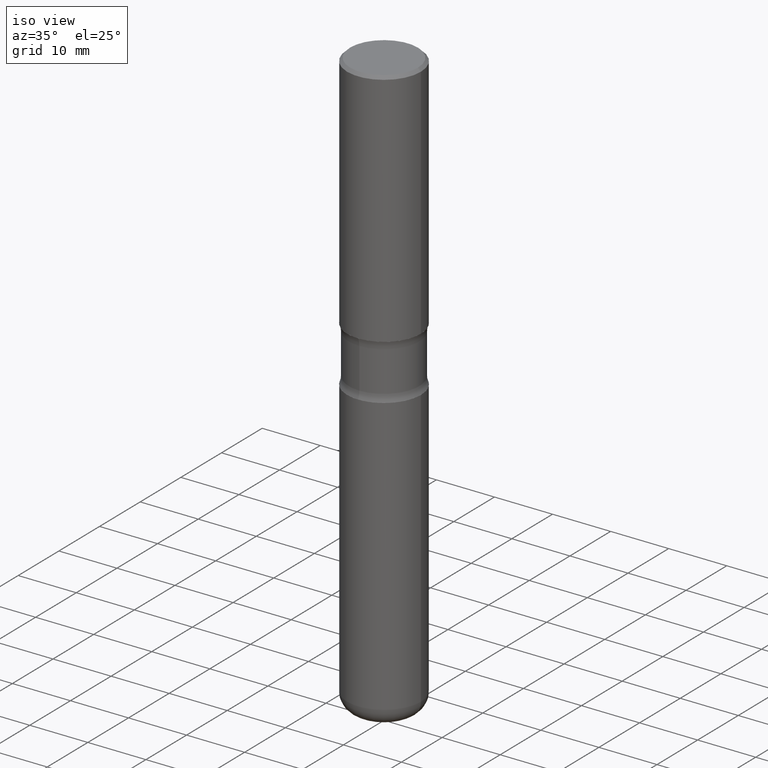
[diagram: clean part render]
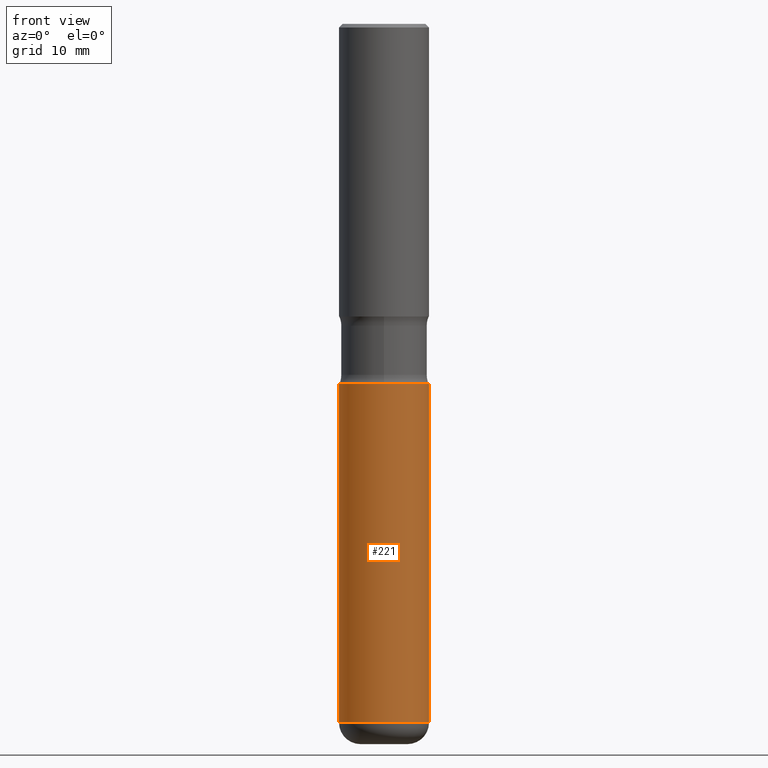
[diagram: tour spotlight — one face highlighted and labeled with its STEP entity id]
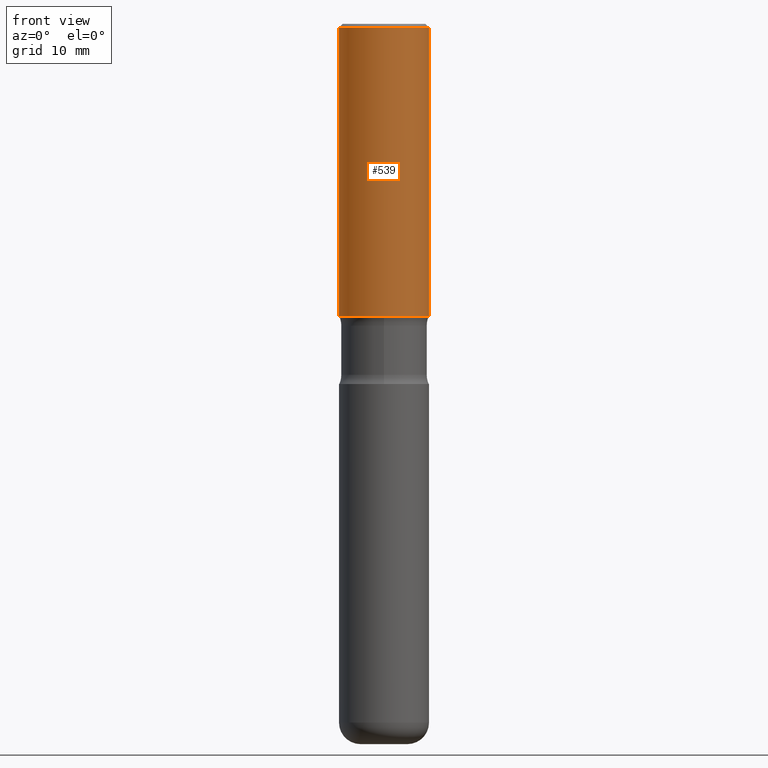
[diagram: tour spotlight — one face highlighted and labeled with its STEP entity id]
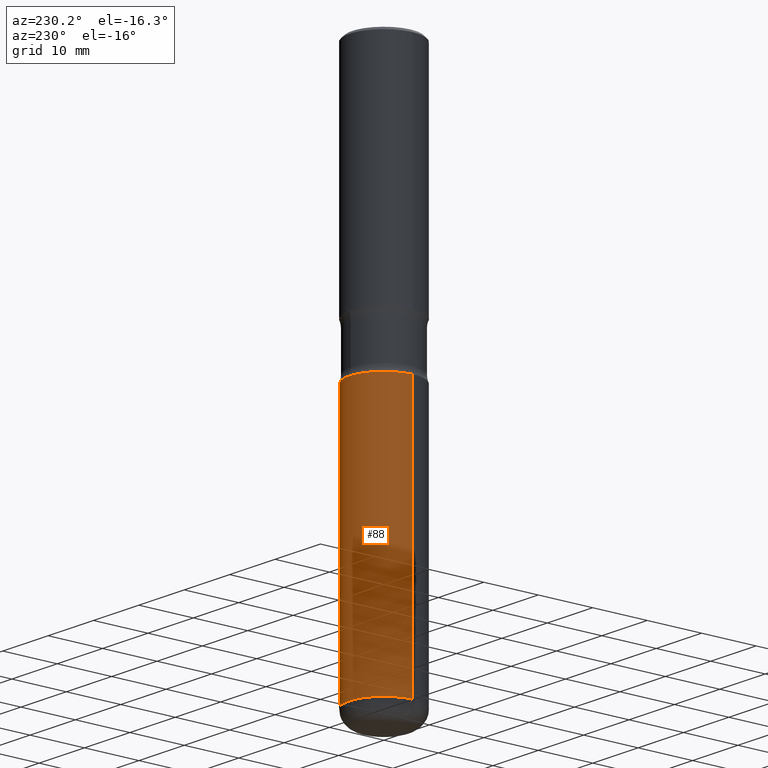
[diagram: tour spotlight — one face highlighted and labeled with its STEP entity id]
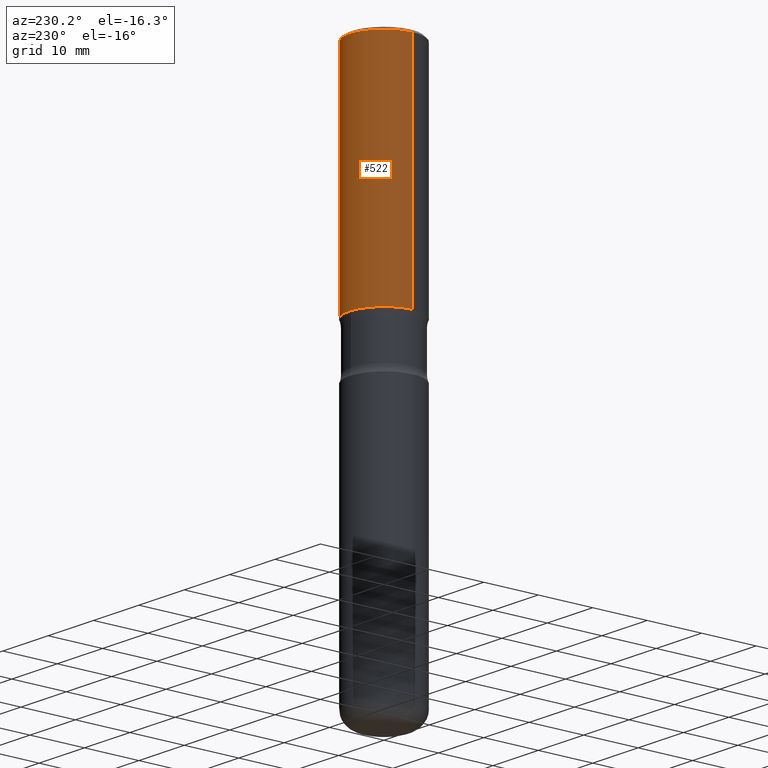
[diagram: tour spotlight — one face highlighted and labeled with its STEP entity id]
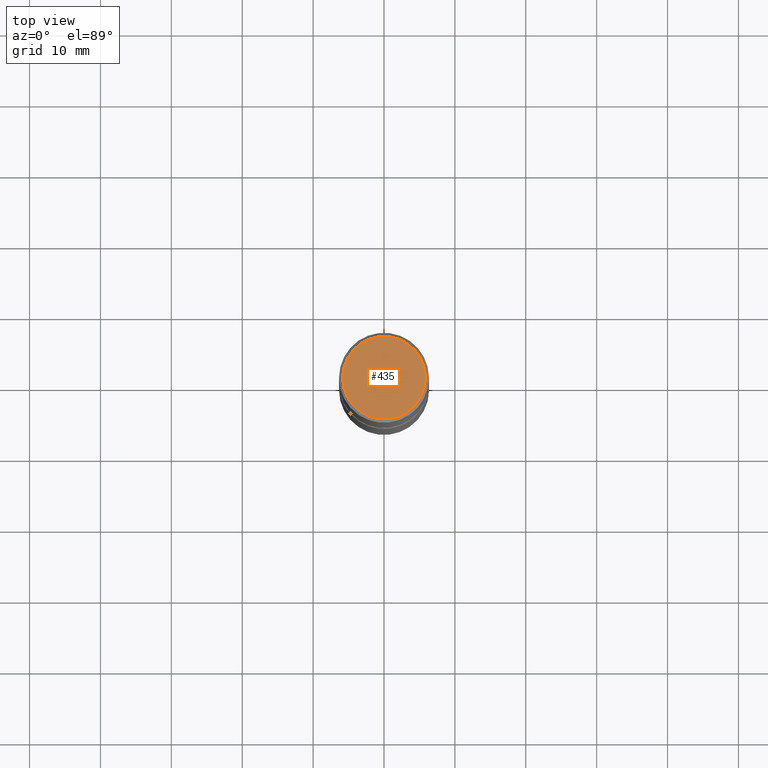
[diagram: tour spotlight — one face highlighted and labeled with its STEP entity id]
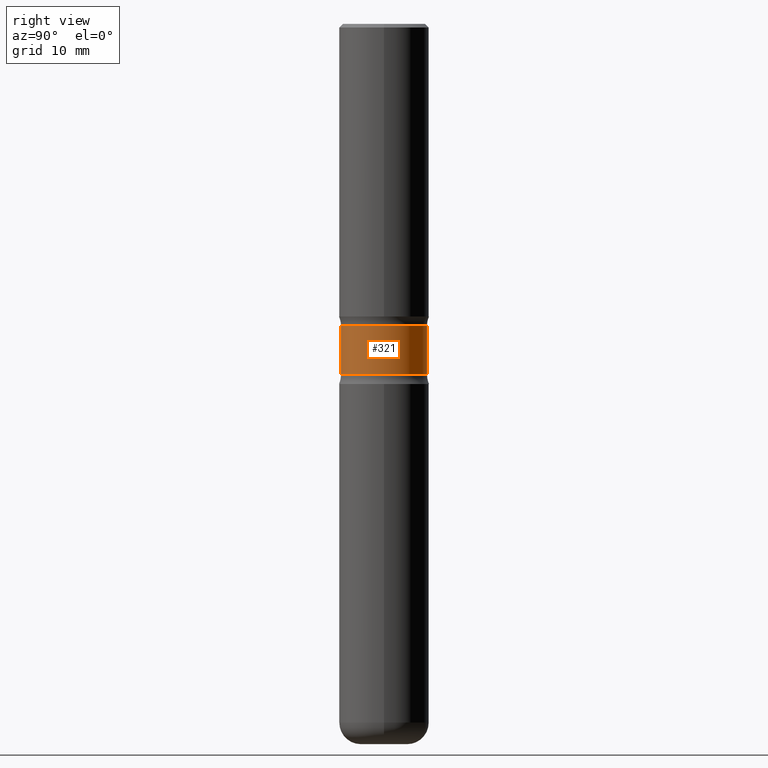
[diagram: tour spotlight — one face highlighted and labeled with its STEP entity id]
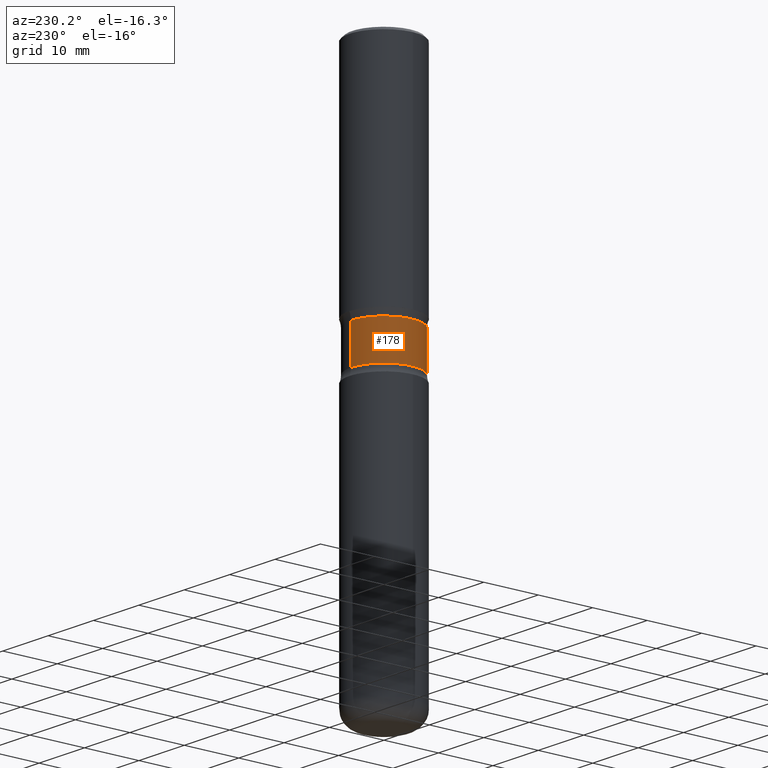
[diagram: tour spotlight — one face highlighted and labeled with its STEP entity id]
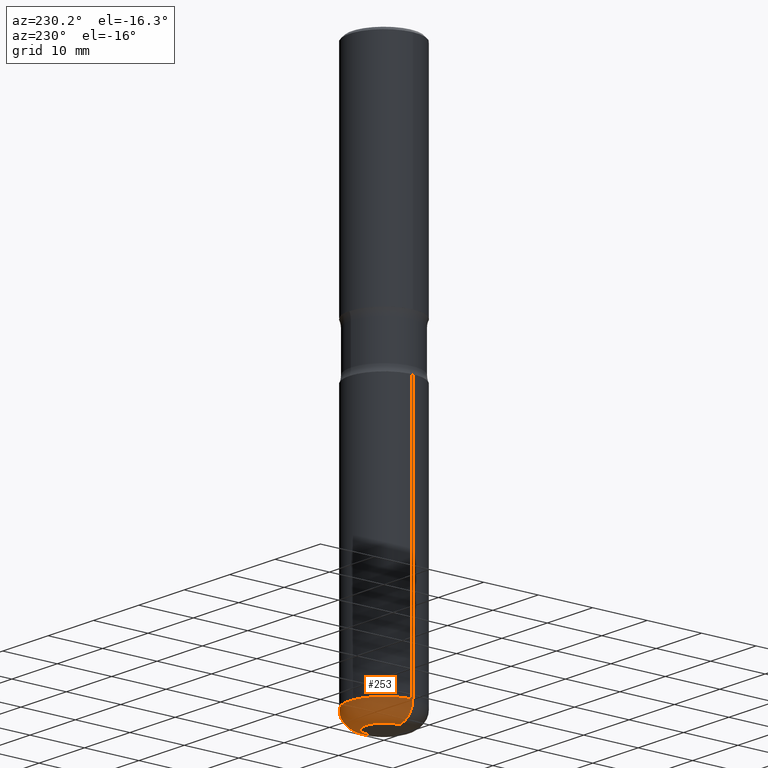
[diagram: tour spotlight — one face highlighted and labeled with its STEP entity id]
A machine part: a face-by-face anatomy tour. The part has 20 B-rep faces; the first image is the clean iso view, then the 8 largest visible faces are spotlighted one at a time (largest first), each with its STEP entity span.

Face 1 — front view, entity #221. In plain terms, the highlighted cylindrical surface (partial cylindrical patch) has radius 6.35 mm, axis along (-0, 0, 1).
Definition (entity closure, byte-faithful):
#13 = LINE ( 'NONE', #488, #369 ) ;
#16 = DIRECTION ( 'NONE',  ( 1.000000000000000000, -6.982962677686268288E-15, 0.000000000000000000 ) ) ;
#49 = DIRECTION ( 'NONE',  ( -2.445468806185136877E-29, 3.491481338843145188E-15, 1.000000000000000000 ) ) ;
#96 = CARTESIAN_POINT ( 'NONE',  ( -0.2500000000000004996, -8.488598296798597572E-15, -2.000000000000000444 ) ) ;
#103 = DIRECTION ( 'NONE',  ( -2.445468806185136597E-29, 3.491481338843145583E-15, 1.000000000000000000 ) ) ;
#122 = DIRECTION ( 'NONE',  ( -2.445468806185136597E-29, 3.491481338843145583E-15, 1.000000000000000000 ) ) ;
#132 = CYLINDRICAL_SURFACE ( 'NONE', #309, 0.2500000000000005551 ) ;
#174 = CIRCLE ( 'NONE', #448, 0.2500000000000006106 ) ;
#198 = CARTESIAN_POINT ( 'NONE',  ( 0.2500000000000004996, -8.728703347107863365E-15, -2.000000000000000444 ) ) ;
#221 = ADVANCED_FACE ( 'NONE', ( #258 ), #132, .T. ) ;
#247 = VERTEX_POINT ( 'NONE', #400 ) ;
#248 = CIRCLE ( 'NONE', #350, 0.2500000000000004996 ) ;
#254 = EDGE_CURVE ( 'NONE', #347, #382, #13, .T. ) ;
#258 = FACE_OUTER_BOUND ( 'NONE', #496, .T. ) ;
#307 = EDGE_CURVE ( 'NONE', #347, #247, #174, .T. ) ;
#309 = AXIS2_PLACEMENT_3D ( 'NONE', #441, #122, #525 ) ;
#313 = CARTESIAN_POINT ( 'NONE',  ( -0.2500000000000005551, -1.177059075531115839E-14, -3.880000000000001670 ) ) ;
#316 = DIRECTION ( 'NONE',  ( -2.445468806185136597E-29, 3.491481338843145583E-15, 1.000000000000000000 ) ) ;
#347 = VERTEX_POINT ( 'NONE', #313 ) ;
#350 = AXIS2_PLACEMENT_3D ( 'NONE', #541, #103, #16 ) ;
#353 = EDGE_CURVE ( 'NONE', #382, #474, #248, .T. ) ;
#369 = VECTOR ( 'NONE', #49, 39.37007874015748143 ) ;
#370 = DIRECTION ( 'NONE',  ( 1.000000000000000000, -6.982962677686269077E-15, 0.000000000000000000 ) ) ;
#371 = VECTOR ( 'NONE', #550, 39.37007874015748143 ) ;
#381 = LINE ( 'NONE', #464, #371 ) ;
#382 = VERTEX_POINT ( 'NONE', #96 ) ;
#400 = CARTESIAN_POINT ( 'NONE',  ( 0.2500000000000005551, -1.529268826413298342E-14, -3.880000000000001670 ) ) ;
#413 = ORIENTED_EDGE ( 'NONE', *, *, #254, .F. ) ;
#418 = ORIENTED_EDGE ( 'NONE', *, *, #353, .F. ) ;
#441 = CARTESIAN_POINT ( 'NONE',  ( 0.000000000000000000, 0.000000000000000000, 0.000000000000000000 ) ) ;
#448 = AXIS2_PLACEMENT_3D ( 'NONE', #540, #316, #370 ) ;
#464 = CARTESIAN_POINT ( 'NONE',  ( 0.2500000000000005551, -1.745740669421570622E-15, 1.219044193948986471E-29 ) ) ;
#469 = ORIENTED_EDGE ( 'NONE', *, *, #307, .T. ) ;
#474 = VERTEX_POINT ( 'NONE', #198 ) ;
#488 = CARTESIAN_POINT ( 'NONE',  ( -0.2500000000000005551, 1.776356839400254409E-15, -1.229733772563729108E-29 ) ) ;
#496 = EDGE_LOOP ( 'NONE', ( #413, #469, #526, #418 ) ) ;
#525 = DIRECTION ( 'NONE',  ( 1.000000000000000000, -6.982962677686266711E-15, 4.876176775795935232E-29 ) ) ;
#526 = ORIENTED_EDGE ( 'NONE', *, *, #548, .T. ) ;
#540 = CARTESIAN_POINT ( 'NONE',  ( 9.488418967998333448E-29, -1.354694759471141201E-14, -3.880000000000001670 ) ) ;
#541 = CARTESIAN_POINT ( 'NONE',  ( 4.890937612370274875E-29, -6.982962677686292743E-15, -2.000000000000000444 ) ) ;
#548 = EDGE_CURVE ( 'NONE', #247, #474, #381, .T. ) ;
#550 = DIRECTION ( 'NONE',  ( -2.445468806185136877E-29, 3.491481338843145188E-15, 1.000000000000000000 ) ) ;

Face 2 — front view, entity #539. In plain terms, the highlighted cylindrical surface (partial cylindrical patch) has radius 6.35 mm, axis along (-0, 0, 1).
Definition (entity closure, byte-faithful):
#8 = CIRCLE ( 'NONE', #77, 0.2500000000000005551 ) ;
#20 = CARTESIAN_POINT ( 'NONE',  ( 4.890937612370306439E-31, -6.982962677686338448E-17, -0.02000000000000013572 ) ) ;
#25 = LINE ( 'NONE', #311, #182 ) ;
#50 = EDGE_CURVE ( 'NONE', #512, #364, #8, .T. ) ;
#67 = ORIENTED_EDGE ( 'NONE', *, *, #437, .F. ) ;
#77 = AXIS2_PLACEMENT_3D ( 'NONE', #553, #551, #109 ) ;
#78 = VECTOR ( 'NONE', #91, 39.37007874015748143 ) ;
#91 = DIRECTION ( 'NONE',  ( -2.445468806185136877E-29, 3.491481338843145188E-15, 1.000000000000000000 ) ) ;
#100 = CARTESIAN_POINT ( 'NONE',  ( 0.2500000000000005551, -7.419397845041682046E-15, -1.624999999999999778 ) ) ;
#109 = DIRECTION ( 'NONE',  ( 1.000000000000000000, -6.982962677686266711E-15, 0.000000000000000000 ) ) ;
#133 = CARTESIAN_POINT ( 'NONE',  ( 0.2500000000000004996, -1.745740669421570030E-15, 1.219044193948986190E-29 ) ) ;
#170 = ORIENTED_EDGE ( 'NONE', *, *, #50, .T. ) ;
#182 = VECTOR ( 'NONE', #278, 39.37007874015748143 ) ;
#192 = CARTESIAN_POINT ( 'NONE',  ( -0.2500000000000005551, -1.095386561798230783E-15, -1.624999999999999778 ) ) ;
#228 = EDGE_CURVE ( 'NONE', #364, #510, #492, .T. ) ;
#235 = AXIS2_PLACEMENT_3D ( 'NONE', #20, #380, #291 ) ;
#236 = EDGE_LOOP ( 'NONE', ( #552, #170, #487, #67 ) ) ;
#278 = DIRECTION ( 'NONE',  ( -2.445468806185136877E-29, 3.491481338843145188E-15, 1.000000000000000000 ) ) ;
#280 = DIRECTION ( 'NONE',  ( 1.000000000000000000, -6.982962677686265922E-15, 4.876176775795935232E-29 ) ) ;
#291 = DIRECTION ( 'NONE',  ( 1.000000000000000000, -6.982962677686266711E-15, 0.000000000000000000 ) ) ;
#311 = CARTESIAN_POINT ( 'NONE',  ( -0.2500000000000004996, 1.776356839400254015E-15, -1.229733772563728688E-29 ) ) ;
#315 = CIRCLE ( 'NONE', #235, 0.2500000000000003331 ) ;
#330 = CARTESIAN_POINT ( 'NONE',  ( 0.2500000000000003331, -1.784954126219748555E-15, -0.02000000000000013572 ) ) ;
#335 = AXIS2_PLACEMENT_3D ( 'NONE', #375, #515, #280 ) ;
#337 = VERTEX_POINT ( 'NONE', #410 ) ;
#364 = VERTEX_POINT ( 'NONE', #100 ) ;
#372 = CYLINDRICAL_SURFACE ( 'NONE', #335, 0.2500000000000004996 ) ;
#373 = EDGE_CURVE ( 'NONE', #512, #337, #25, .T. ) ;
#375 = CARTESIAN_POINT ( 'NONE',  ( 0.000000000000000000, 0.000000000000000000, 0.000000000000000000 ) ) ;
#380 = DIRECTION ( 'NONE',  ( -2.445468806185136597E-29, 3.491481338843145583E-15, 1.000000000000000000 ) ) ;
#410 = CARTESIAN_POINT ( 'NONE',  ( -0.2500000000000003331, 1.675911042644705746E-15, -0.02000000000000013572 ) ) ;
#437 = EDGE_CURVE ( 'NONE', #337, #510, #315, .T. ) ;
#487 = ORIENTED_EDGE ( 'NONE', *, *, #228, .T. ) ;
#492 = LINE ( 'NONE', #133, #78 ) ;
#509 = FACE_OUTER_BOUND ( 'NONE', #236, .T. ) ;
#510 = VERTEX_POINT ( 'NONE', #330 ) ;
#512 = VERTEX_POINT ( 'NONE', #192 ) ;
#515 = DIRECTION ( 'NONE',  ( -2.445468806185136597E-29, 3.491481338843145583E-15, 1.000000000000000000 ) ) ;
#539 = ADVANCED_FACE ( 'NONE', ( #509 ), #372, .T. ) ;
#551 = DIRECTION ( 'NONE',  ( -2.445468806185136597E-29, 3.491481338843145583E-15, 1.000000000000000000 ) ) ;
#552 = ORIENTED_EDGE ( 'NONE', *, *, #373, .F. ) ;
#553 = CARTESIAN_POINT ( 'NONE',  ( 3.973886810050846409E-29, -5.673657175620110635E-15, -1.624999999999999778 ) ) ;

Face 3 — auxiliary view, entity #88. In plain terms, the highlighted cylindrical surface (partial cylindrical patch) has radius 6.35 mm, axis along (-0, 0, 1).
Definition (entity closure, byte-faithful):
#11 = AXIS2_PLACEMENT_3D ( 'NONE', #319, #61, #360 ) ;
#13 = LINE ( 'NONE', #488, #369 ) ;
#17 = EDGE_LOOP ( 'NONE', ( #151, #517, #329, #472 ) ) ;
#36 = DIRECTION ( 'NONE',  ( -2.445468806185136597E-29, 3.491481338843145583E-15, 1.000000000000000000 ) ) ;
#49 = DIRECTION ( 'NONE',  ( -2.445468806185136877E-29, 3.491481338843145188E-15, 1.000000000000000000 ) ) ;
#61 = DIRECTION ( 'NONE',  ( -2.445468806185136597E-29, 3.491481338843145583E-15, 1.000000000000000000 ) ) ;
#63 = AXIS2_PLACEMENT_3D ( 'NONE', #206, #36, #555 ) ;
#73 = CARTESIAN_POINT ( 'NONE',  ( 0.000000000000000000, 0.000000000000000000, 0.000000000000000000 ) ) ;
#88 = ADVANCED_FACE ( 'NONE', ( #473 ), #470, .T. ) ;
#96 = CARTESIAN_POINT ( 'NONE',  ( -0.2500000000000004996, -8.488598296798597572E-15, -2.000000000000000444 ) ) ;
#151 = ORIENTED_EDGE ( 'NONE', *, *, #485, .T. ) ;
#196 = DIRECTION ( 'NONE',  ( 1.000000000000000000, -6.982962677686266711E-15, 4.876176775795935232E-29 ) ) ;
#198 = CARTESIAN_POINT ( 'NONE',  ( 0.2500000000000004996, -8.728703347107863365E-15, -2.000000000000000444 ) ) ;
#206 = CARTESIAN_POINT ( 'NONE',  ( 9.488418967998333448E-29, -1.354694759471141201E-14, -3.880000000000001670 ) ) ;
#231 = CIRCLE ( 'NONE', #11, 0.2500000000000004996 ) ;
#247 = VERTEX_POINT ( 'NONE', #400 ) ;
#254 = EDGE_CURVE ( 'NONE', #347, #382, #13, .T. ) ;
#304 = EDGE_CURVE ( 'NONE', #474, #382, #231, .T. ) ;
#313 = CARTESIAN_POINT ( 'NONE',  ( -0.2500000000000005551, -1.177059075531115839E-14, -3.880000000000001670 ) ) ;
#319 = CARTESIAN_POINT ( 'NONE',  ( 4.890937612370274875E-29, -6.982962677686292743E-15, -2.000000000000000444 ) ) ;
#329 = ORIENTED_EDGE ( 'NONE', *, *, #304, .F. ) ;
#347 = VERTEX_POINT ( 'NONE', #313 ) ;
#360 = DIRECTION ( 'NONE',  ( 1.000000000000000000, -6.982962677686268288E-15, 0.000000000000000000 ) ) ;
#369 = VECTOR ( 'NONE', #49, 39.37007874015748143 ) ;
#371 = VECTOR ( 'NONE', #550, 39.37007874015748143 ) ;
#381 = LINE ( 'NONE', #464, #371 ) ;
#382 = VERTEX_POINT ( 'NONE', #96 ) ;
#400 = CARTESIAN_POINT ( 'NONE',  ( 0.2500000000000005551, -1.529268826413298342E-14, -3.880000000000001670 ) ) ;
#419 = DIRECTION ( 'NONE',  ( -2.445468806185136597E-29, 3.491481338843145583E-15, 1.000000000000000000 ) ) ;
#456 = CIRCLE ( 'NONE', #63, 0.2500000000000006106 ) ;
#464 = CARTESIAN_POINT ( 'NONE',  ( 0.2500000000000005551, -1.745740669421570622E-15, 1.219044193948986471E-29 ) ) ;
#470 = CYLINDRICAL_SURFACE ( 'NONE', #511, 0.2500000000000005551 ) ;
#472 = ORIENTED_EDGE ( 'NONE', *, *, #548, .F. ) ;
#473 = FACE_OUTER_BOUND ( 'NONE', #17, .T. ) ;
#474 = VERTEX_POINT ( 'NONE', #198 ) ;
#485 = EDGE_CURVE ( 'NONE', #247, #347, #456, .T. ) ;
#488 = CARTESIAN_POINT ( 'NONE',  ( -0.2500000000000005551, 1.776356839400254409E-15, -1.229733772563729108E-29 ) ) ;
#511 = AXIS2_PLACEMENT_3D ( 'NONE', #73, #419, #196 ) ;
#517 = ORIENTED_EDGE ( 'NONE', *, *, #254, .T. ) ;
#548 = EDGE_CURVE ( 'NONE', #247, #474, #381, .T. ) ;
#550 = DIRECTION ( 'NONE',  ( -2.445468806185136877E-29, 3.491481338843145188E-15, 1.000000000000000000 ) ) ;
#555 = DIRECTION ( 'NONE',  ( 1.000000000000000000, -6.982962677686269077E-15, 0.000000000000000000 ) ) ;

Face 4 — auxiliary view, entity #522. In plain terms, the highlighted cylindrical surface (partial cylindrical patch) has radius 6.35 mm, axis along (-0, 0, 1).
Definition (entity closure, byte-faithful):
#25 = LINE ( 'NONE', #311, #182 ) ;
#37 = ORIENTED_EDGE ( 'NONE', *, *, #228, .F. ) ;
#53 = DIRECTION ( 'NONE',  ( 1.000000000000000000, -6.982962677686266711E-15, 0.000000000000000000 ) ) ;
#78 = VECTOR ( 'NONE', #91, 39.37007874015748143 ) ;
#80 = FACE_OUTER_BOUND ( 'NONE', #272, .T. ) ;
#87 = DIRECTION ( 'NONE',  ( -2.445468806185136597E-29, 3.491481338843145583E-15, 1.000000000000000000 ) ) ;
#91 = DIRECTION ( 'NONE',  ( -2.445468806185136877E-29, 3.491481338843145188E-15, 1.000000000000000000 ) ) ;
#94 = DIRECTION ( 'NONE',  ( -2.445468806185136597E-29, 3.491481338843145583E-15, 1.000000000000000000 ) ) ;
#100 = CARTESIAN_POINT ( 'NONE',  ( 0.2500000000000005551, -7.419397845041682046E-15, -1.624999999999999778 ) ) ;
#112 = DIRECTION ( 'NONE',  ( 1.000000000000000000, -6.982962677686265922E-15, 4.876176775795935232E-29 ) ) ;
#133 = CARTESIAN_POINT ( 'NONE',  ( 0.2500000000000004996, -1.745740669421570030E-15, 1.219044193948986190E-29 ) ) ;
#165 = CIRCLE ( 'NONE', #379, 0.2500000000000005551 ) ;
#167 = CARTESIAN_POINT ( 'NONE',  ( 3.973886810050846409E-29, -5.673657175620110635E-15, -1.624999999999999778 ) ) ;
#177 = CARTESIAN_POINT ( 'NONE',  ( 4.890937612370306439E-31, -6.982962677686338448E-17, -0.02000000000000013572 ) ) ;
#182 = VECTOR ( 'NONE', #278, 39.37007874015748143 ) ;
#192 = CARTESIAN_POINT ( 'NONE',  ( -0.2500000000000005551, -1.095386561798230783E-15, -1.624999999999999778 ) ) ;
#203 = EDGE_CURVE ( 'NONE', #510, #337, #521, .T. ) ;
#228 = EDGE_CURVE ( 'NONE', #364, #510, #492, .T. ) ;
#251 = ORIENTED_EDGE ( 'NONE', *, *, #373, .T. ) ;
#262 = DIRECTION ( 'NONE',  ( 1.000000000000000000, -6.982962677686266711E-15, 0.000000000000000000 ) ) ;
#271 = EDGE_CURVE ( 'NONE', #364, #512, #165, .T. ) ;
#272 = EDGE_LOOP ( 'NONE', ( #549, #251, #288, #37 ) ) ;
#276 = AXIS2_PLACEMENT_3D ( 'NONE', #471, #322, #112 ) ;
#278 = DIRECTION ( 'NONE',  ( -2.445468806185136877E-29, 3.491481338843145188E-15, 1.000000000000000000 ) ) ;
#288 = ORIENTED_EDGE ( 'NONE', *, *, #203, .F. ) ;
#311 = CARTESIAN_POINT ( 'NONE',  ( -0.2500000000000004996, 1.776356839400254015E-15, -1.229733772563728688E-29 ) ) ;
#322 = DIRECTION ( 'NONE',  ( -2.445468806185136597E-29, 3.491481338843145583E-15, 1.000000000000000000 ) ) ;
#325 = CYLINDRICAL_SURFACE ( 'NONE', #276, 0.2500000000000004996 ) ;
#330 = CARTESIAN_POINT ( 'NONE',  ( 0.2500000000000003331, -1.784954126219748555E-15, -0.02000000000000013572 ) ) ;
#337 = VERTEX_POINT ( 'NONE', #410 ) ;
#364 = VERTEX_POINT ( 'NONE', #100 ) ;
#373 = EDGE_CURVE ( 'NONE', #512, #337, #25, .T. ) ;
#379 = AXIS2_PLACEMENT_3D ( 'NONE', #167, #87, #262 ) ;
#410 = CARTESIAN_POINT ( 'NONE',  ( -0.2500000000000003331, 1.675911042644705746E-15, -0.02000000000000013572 ) ) ;
#471 = CARTESIAN_POINT ( 'NONE',  ( 0.000000000000000000, 0.000000000000000000, 0.000000000000000000 ) ) ;
#492 = LINE ( 'NONE', #133, #78 ) ;
#506 = AXIS2_PLACEMENT_3D ( 'NONE', #177, #94, #53 ) ;
#510 = VERTEX_POINT ( 'NONE', #330 ) ;
#512 = VERTEX_POINT ( 'NONE', #192 ) ;
#521 = CIRCLE ( 'NONE', #506, 0.2500000000000003331 ) ;
#522 = ADVANCED_FACE ( 'NONE', ( #80 ), #325, .T. ) ;
#549 = ORIENTED_EDGE ( 'NONE', *, *, #271, .T. ) ;

Face 5 — top view, entity #435. In plain terms, the highlighted planar face has unit normal (0, -0, -1).
Definition (entity closure, byte-faithful):
#30 = EDGE_LOOP ( 'NONE', ( #194, #257 ) ) ;
#55 = CARTESIAN_POINT ( 'NONE',  ( 0.2300000000000002320, -1.681434332853601180E-15, -3.414809992079179628E-17 ) ) ;
#58 = FACE_OUTER_BOUND ( 'NONE', #30, .T. ) ;
#65 = PLANE ( 'NONE',  #219 ) ;
#93 = CARTESIAN_POINT ( 'NONE',  ( -0.2300000000000002320, 1.640996229256274294E-15, -3.414809992081464243E-17 ) ) ;
#116 = AXIS2_PLACEMENT_3D ( 'NONE', #358, #181, #536 ) ;
#136 = AXIS2_PLACEMENT_3D ( 'NONE', #507, #270, #179 ) ;
#179 = DIRECTION ( 'NONE',  ( 1.000000000000000000, -6.982962677686266711E-15, 4.875813741439094729E-29 ) ) ;
#181 = DIRECTION ( 'NONE',  ( -2.445468806185136597E-29, 3.491481338843145583E-15, 1.000000000000000000 ) ) ;
#194 = ORIENTED_EDGE ( 'NONE', *, *, #285, .T. ) ;
#207 = VERTEX_POINT ( 'NONE', #55 ) ;
#219 = AXIS2_PLACEMENT_3D ( 'NONE', #225, #274, #453 ) ;
#225 = CARTESIAN_POINT ( 'NONE',  ( 1.606081415867843039E-15, 0.2300000000000002320, -8.201147578943259875E-16 ) ) ;
#240 = VERTEX_POINT ( 'NONE', #93 ) ;
#257 = ORIENTED_EDGE ( 'NONE', *, *, #346, .T. ) ;
#260 = CIRCLE ( 'NONE', #116, 0.2300000000000002320 ) ;
#270 = DIRECTION ( 'NONE',  ( -2.445468806185136597E-29, 3.491481338843145583E-15, 1.000000000000000000 ) ) ;
#274 = DIRECTION ( 'NONE',  ( 2.438088387897960049E-29, -3.491481338843145188E-15, -1.000000000000000000 ) ) ;
#285 = EDGE_CURVE ( 'NONE', #240, #207, #260, .T. ) ;
#346 = EDGE_CURVE ( 'NONE', #207, #240, #386, .T. ) ;
#358 = CARTESIAN_POINT ( 'NONE',  ( 8.350811314681758556E-46, -1.192274536304357760E-31, -3.414809992080329023E-17 ) ) ;
#386 = CIRCLE ( 'NONE', #136, 0.2300000000000002320 ) ;
#435 = ADVANCED_FACE ( 'NONE', ( #58 ), #65, .F. ) ;
#453 = DIRECTION ( 'NONE',  ( -1.000000000000000000, 6.982962677686265922E-15, -4.876176775795935793E-29 ) ) ;
#507 = CARTESIAN_POINT ( 'NONE',  ( 8.350811314681758556E-46, -1.192274536304357760E-31, -3.414809992080329023E-17 ) ) ;
#536 = DIRECTION ( 'NONE',  ( 1.000000000000000000, -6.982962677686266711E-15, 4.875813741439094729E-29 ) ) ;

Face 6 — right view, entity #321. In plain terms, the highlighted cylindrical surface (partial cylindrical patch) has radius 6.0706 mm, axis along (0, -0, -1).
Definition (entity closure, byte-faithful):
#10 = VECTOR ( 'NONE', #143, 39.37007874015748143 ) ;
#15 = FACE_OUTER_BOUND ( 'NONE', #404, .T. ) ;
#33 = LINE ( 'NONE', #71, #201 ) ;
#68 = DIRECTION ( 'NONE',  ( 2.475275669592745842E-29, -3.448796213942141316E-15, -1.000000000000000000 ) ) ;
#71 = CARTESIAN_POINT ( 'NONE',  ( -1.639659021467298523E-15, -0.2390000000000140346, -3.999999999999999556 ) ) ;
#105 = VERTEX_POINT ( 'NONE', #451 ) ;
#111 = CARTESIAN_POINT ( 'NONE',  ( 4.089625963952275315E-29, -5.866496898460006191E-15, -1.676273774973178199 ) ) ;
#121 = EDGE_CURVE ( 'NONE', #195, #156, #128, .T. ) ;
#128 = CIRCLE ( 'NONE', #489, 0.2390000000000002123 ) ;
#131 = DIRECTION ( 'NONE',  ( 2.475275669592745562E-29, -3.448796213942141316E-15, -1.000000000000000000 ) ) ;
#135 = CARTESIAN_POINT ( 'NONE',  ( 9.841488951555764877E-29, -1.388055510557057537E-14, -4.000000000000000888 ) ) ;
#138 = CYLINDRICAL_SURFACE ( 'NONE', #301, 0.2390000000000001568 ) ;
#140 = CARTESIAN_POINT ( 'NONE',  ( -1.677391760455101849E-15, -0.2390000000000060687, -1.676273774973177533 ) ) ;
#143 = DIRECTION ( 'NONE',  ( 2.475275669592745842E-29, -3.448796213942141316E-15, -1.000000000000000000 ) ) ;
#156 = VERTEX_POINT ( 'NONE', #140 ) ;
#161 = CARTESIAN_POINT ( 'NONE',  ( 1.668928079967066472E-15, 0.2389999999999934122, -1.948726225026823355 ) ) ;
#172 = CARTESIAN_POINT ( 'NONE',  ( 1.668928079967059964E-15, 0.2389999999999943281, -1.676273774973179087 ) ) ;
#175 = DIRECTION ( 'NONE',  ( 6.982962677686265133E-15, 1.000000000000000000, -3.429097899996980271E-15 ) ) ;
#195 = VERTEX_POINT ( 'NONE', #172 ) ;
#201 = VECTOR ( 'NONE', #68, 39.37007874015748143 ) ;
#205 = EDGE_CURVE ( 'NONE', #475, #105, #293, .T. ) ;
#230 = DIRECTION ( 'NONE',  ( 6.982962677686266711E-15, 1.000000000000000000, -4.572130533329308080E-15 ) ) ;
#243 = ORIENTED_EDGE ( 'NONE', *, *, #121, .T. ) ;
#279 = DIRECTION ( 'NONE',  ( 2.475275669592745562E-29, -3.448796213942141316E-15, -1.000000000000000000 ) ) ;
#286 = ORIENTED_EDGE ( 'NONE', *, *, #205, .F. ) ;
#293 = CIRCLE ( 'NONE', #327, 0.2390000000000002123 ) ;
#301 = AXIS2_PLACEMENT_3D ( 'NONE', #135, #503, #230 ) ;
#321 = ADVANCED_FACE ( 'NONE', ( #15 ), #138, .T. ) ;
#327 = AXIS2_PLACEMENT_3D ( 'NONE', #530, #131, #175 ) ;
#355 = EDGE_CURVE ( 'NONE', #195, #475, #504, .T. ) ;
#363 = ORIENTED_EDGE ( 'NONE', *, *, #355, .F. ) ;
#401 = ORIENTED_EDGE ( 'NONE', *, *, #516, .T. ) ;
#404 = EDGE_LOOP ( 'NONE', ( #243, #401, #286, #363 ) ) ;
#451 = CARTESIAN_POINT ( 'NONE',  ( -1.677391760455093764E-15, -0.2390000000000070401, -1.948726225026821579 ) ) ;
#460 = DIRECTION ( 'NONE',  ( 6.982962677686265133E-15, 1.000000000000000000, -3.429097899996980271E-15 ) ) ;
#475 = VERTEX_POINT ( 'NONE', #161 ) ;
#489 = AXIS2_PLACEMENT_3D ( 'NONE', #111, #279, #460 ) ;
#503 = DIRECTION ( 'NONE',  ( 2.475275669592745562E-29, -3.448796213942141316E-15, -1.000000000000000000 ) ) ;
#504 = LINE ( 'NONE', #542, #10 ) ;
#516 = EDGE_CURVE ( 'NONE', #156, #105, #33, .T. ) ;
#530 = CARTESIAN_POINT ( 'NONE',  ( 4.764020884690993624E-29, -6.806129876684274872E-15, -1.948726225026822467 ) ) ;
#542 = CARTESIAN_POINT ( 'NONE',  ( 1.668928079967117156E-15, 0.2389999999999863067, -4.000000000000001776 ) ) ;

Face 7 — auxiliary view, entity #178. In plain terms, the highlighted cylindrical surface (partial cylindrical patch) has radius 6.0706 mm, axis along (0, -0, -1).
Definition (entity closure, byte-faithful):
#6 = DIRECTION ( 'NONE',  ( 2.475275669592745562E-29, -3.448796213942141316E-15, -1.000000000000000000 ) ) ;
#9 = CARTESIAN_POINT ( 'NONE',  ( 9.841488951555764877E-29, -1.388055510557057537E-14, -4.000000000000000888 ) ) ;
#10 = VECTOR ( 'NONE', #143, 39.37007874015748143 ) ;
#33 = LINE ( 'NONE', #71, #201 ) ;
#68 = DIRECTION ( 'NONE',  ( 2.475275669592745842E-29, -3.448796213942141316E-15, -1.000000000000000000 ) ) ;
#71 = CARTESIAN_POINT ( 'NONE',  ( -1.639659021467298523E-15, -0.2390000000000140346, -3.999999999999999556 ) ) ;
#105 = VERTEX_POINT ( 'NONE', #451 ) ;
#140 = CARTESIAN_POINT ( 'NONE',  ( -1.677391760455101849E-15, -0.2390000000000060687, -1.676273774973177533 ) ) ;
#143 = DIRECTION ( 'NONE',  ( 2.475275669592745842E-29, -3.448796213942141316E-15, -1.000000000000000000 ) ) ;
#156 = VERTEX_POINT ( 'NONE', #140 ) ;
#160 = ORIENTED_EDGE ( 'NONE', *, *, #516, .F. ) ;
#161 = CARTESIAN_POINT ( 'NONE',  ( 1.668928079967066472E-15, 0.2389999999999934122, -1.948726225026823355 ) ) ;
#168 = EDGE_CURVE ( 'NONE', #105, #475, #200, .T. ) ;
#172 = CARTESIAN_POINT ( 'NONE',  ( 1.668928079967059964E-15, 0.2389999999999943281, -1.676273774973179087 ) ) ;
#178 = ADVANCED_FACE ( 'NONE', ( #215 ), #388, .T. ) ;
#183 = EDGE_CURVE ( 'NONE', #156, #195, #349, .T. ) ;
#195 = VERTEX_POINT ( 'NONE', #172 ) ;
#200 = CIRCLE ( 'NONE', #531, 0.2390000000000002123 ) ;
#201 = VECTOR ( 'NONE', #68, 39.37007874015748143 ) ;
#202 = ORIENTED_EDGE ( 'NONE', *, *, #183, .T. ) ;
#211 = AXIS2_PLACEMENT_3D ( 'NONE', #9, #533, #299 ) ;
#215 = FACE_OUTER_BOUND ( 'NONE', #484, .T. ) ;
#266 = DIRECTION ( 'NONE',  ( 6.982962677686265133E-15, 1.000000000000000000, -3.429097899996980271E-15 ) ) ;
#281 = AXIS2_PLACEMENT_3D ( 'NONE', #446, #6, #348 ) ;
#299 = DIRECTION ( 'NONE',  ( 6.982962677686266711E-15, 1.000000000000000000, -4.572130533329308080E-15 ) ) ;
#331 = ORIENTED_EDGE ( 'NONE', *, *, #168, .F. ) ;
#348 = DIRECTION ( 'NONE',  ( 6.982962677686265133E-15, 1.000000000000000000, -3.429097899996980271E-15 ) ) ;
#349 = CIRCLE ( 'NONE', #281, 0.2390000000000002123 ) ;
#355 = EDGE_CURVE ( 'NONE', #195, #475, #504, .T. ) ;
#388 = CYLINDRICAL_SURFACE ( 'NONE', #211, 0.2390000000000001568 ) ;
#391 = DIRECTION ( 'NONE',  ( 2.475275669592745562E-29, -3.448796213942141316E-15, -1.000000000000000000 ) ) ;
#411 = ORIENTED_EDGE ( 'NONE', *, *, #355, .T. ) ;
#436 = CARTESIAN_POINT ( 'NONE',  ( 4.764020884690993624E-29, -6.806129876684274872E-15, -1.948726225026822467 ) ) ;
#446 = CARTESIAN_POINT ( 'NONE',  ( 4.089625963952275315E-29, -5.866496898460006191E-15, -1.676273774973178199 ) ) ;
#451 = CARTESIAN_POINT ( 'NONE',  ( -1.677391760455093764E-15, -0.2390000000000070401, -1.948726225026821579 ) ) ;
#475 = VERTEX_POINT ( 'NONE', #161 ) ;
#484 = EDGE_LOOP ( 'NONE', ( #160, #202, #411, #331 ) ) ;
#504 = LINE ( 'NONE', #542, #10 ) ;
#516 = EDGE_CURVE ( 'NONE', #156, #105, #33, .T. ) ;
#531 = AXIS2_PLACEMENT_3D ( 'NONE', #436, #391, #266 ) ;
#533 = DIRECTION ( 'NONE',  ( 2.475275669592745562E-29, -3.448796213942141316E-15, -1.000000000000000000 ) ) ;
#542 = CARTESIAN_POINT ( 'NONE',  ( 1.668928079967117156E-15, 0.2389999999999863067, -4.000000000000001776 ) ) ;

Face 8 — auxiliary view, entity #253. In plain terms, the highlighted toroidal blend (fillet) surface has major radius 3.302 mm and minor (blend) radius 3.048 mm.
Definition (entity closure, byte-faithful):
#24 = DIRECTION ( 'NONE',  ( 1.000000000000000000, -6.982962677686272233E-15, 0.000000000000000000 ) ) ;
#28 = DIRECTION ( 'NONE',  ( 7.105427357601001859E-15, 1.000000000000000000, -3.491481338843145583E-15 ) ) ;
#31 = ORIENTED_EDGE ( 'NONE', *, *, #86, .T. ) ;
#36 = DIRECTION ( 'NONE',  ( -2.445468806185136597E-29, 3.491481338843145583E-15, 1.000000000000000000 ) ) ;
#42 = EDGE_LOOP ( 'NONE', ( #428, #31, #238, #430 ) ) ;
#45 = AXIS2_PLACEMENT_3D ( 'NONE', #498, #528, #127 ) ;
#59 = DIRECTION ( 'NONE',  ( 1.000000000000000000, -6.982962677686269866E-15, 0.000000000000000000 ) ) ;
#63 = AXIS2_PLACEMENT_3D ( 'NONE', #206, #36, #555 ) ;
#70 = TOROIDAL_SURFACE ( 'NONE', #45, 0.1300000000000006151, 0.1199999999999999123 ) ;
#86 = EDGE_CURVE ( 'NONE', #457, #347, #157, .T. ) ;
#124 = EDGE_CURVE ( 'NONE', #374, #247, #229, .T. ) ;
#127 = DIRECTION ( 'NONE',  ( 1.000000000000000000, -6.982962677686263555E-15, 4.883557194083111780E-29 ) ) ;
#130 = CIRCLE ( 'NONE', #396, 0.1300000000000006151 ) ;
#146 = AXIS2_PLACEMENT_3D ( 'NONE', #546, #314, #24 ) ;
#157 = CIRCLE ( 'NONE', #395, 0.1199999999999999262 ) ;
#187 = DIRECTION ( 'NONE',  ( -2.445468806185136597E-29, 3.491481338843145583E-15, 1.000000000000000000 ) ) ;
#189 = CARTESIAN_POINT ( 'NONE',  ( 9.781875224740550871E-29, -1.396592535537258864E-14, -4.000000000000001776 ) ) ;
#206 = CARTESIAN_POINT ( 'NONE',  ( 9.488418967998333448E-29, -1.354694759471141201E-14, -3.880000000000001670 ) ) ;
#229 = CIRCLE ( 'NONE', #146, 0.1199999999999999262 ) ;
#238 = ORIENTED_EDGE ( 'NONE', *, *, #485, .F. ) ;
#247 = VERTEX_POINT ( 'NONE', #400 ) ;
#253 = ADVANCED_FACE ( 'NONE', ( #306 ), #70, .T. ) ;
#306 = FACE_OUTER_BOUND ( 'NONE', #42, .T. ) ;
#313 = CARTESIAN_POINT ( 'NONE',  ( -0.2500000000000005551, -1.177059075531115839E-14, -3.880000000000001670 ) ) ;
#314 = DIRECTION ( 'NONE',  ( -6.982962677686266711E-15, -1.000000000000000000, 3.491481338843145583E-15 ) ) ;
#347 = VERTEX_POINT ( 'NONE', #313 ) ;
#357 = EDGE_CURVE ( 'NONE', #374, #457, #130, .T. ) ;
#374 = VERTEX_POINT ( 'NONE', #501 ) ;
#376 = DIRECTION ( 'NONE',  ( -1.000000000000000000, 7.105427357600995548E-15, 0.000000000000000000 ) ) ;
#395 = AXIS2_PLACEMENT_3D ( 'NONE', #421, #28, #376 ) ;
#396 = AXIS2_PLACEMENT_3D ( 'NONE', #189, #187, #59 ) ;
#400 = CARTESIAN_POINT ( 'NONE',  ( 0.2500000000000005551, -1.529268826413298342E-14, -3.880000000000001670 ) ) ;
#421 = CARTESIAN_POINT ( 'NONE',  ( -0.1300000000000006151, -1.262324203822327779E-14, -3.880000000000001670 ) ) ;
#428 = ORIENTED_EDGE ( 'NONE', *, *, #357, .T. ) ;
#430 = ORIENTED_EDGE ( 'NONE', *, *, #124, .F. ) ;
#456 = CIRCLE ( 'NONE', #63, 0.2500000000000006106 ) ;
#457 = VERTEX_POINT ( 'NONE', #478 ) ;
#478 = CARTESIAN_POINT ( 'NONE',  ( -0.1300000000000006151, -1.240640527709780719E-14, -4.000000000000001776 ) ) ;
#485 = EDGE_CURVE ( 'NONE', #247, #347, #456, .T. ) ;
#498 = CARTESIAN_POINT ( 'NONE',  ( 9.488418967998333448E-29, -1.354694759471141201E-14, -3.880000000000001670 ) ) ;
#501 = CARTESIAN_POINT ( 'NONE',  ( 0.1300000000000006151, -1.487371050347180678E-14, -4.000000000000001776 ) ) ;
#528 = DIRECTION ( 'NONE',  ( -2.445468806185136597E-29, 3.491481338843145583E-15, 1.000000000000000000 ) ) ;
#546 = CARTESIAN_POINT ( 'NONE',  ( 0.1300000000000006151, -1.445473274281063015E-14, -3.880000000000001670 ) ) ;
#555 = DIRECTION ( 'NONE',  ( 1.000000000000000000, -6.982962677686269077E-15, 0.000000000000000000 ) ) ;